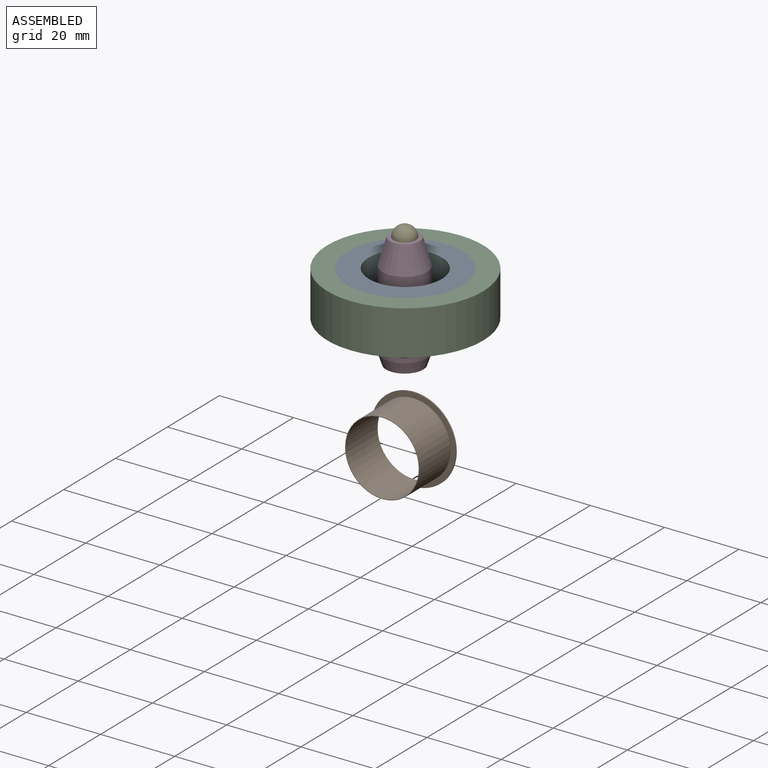
[diagram: assembled view]
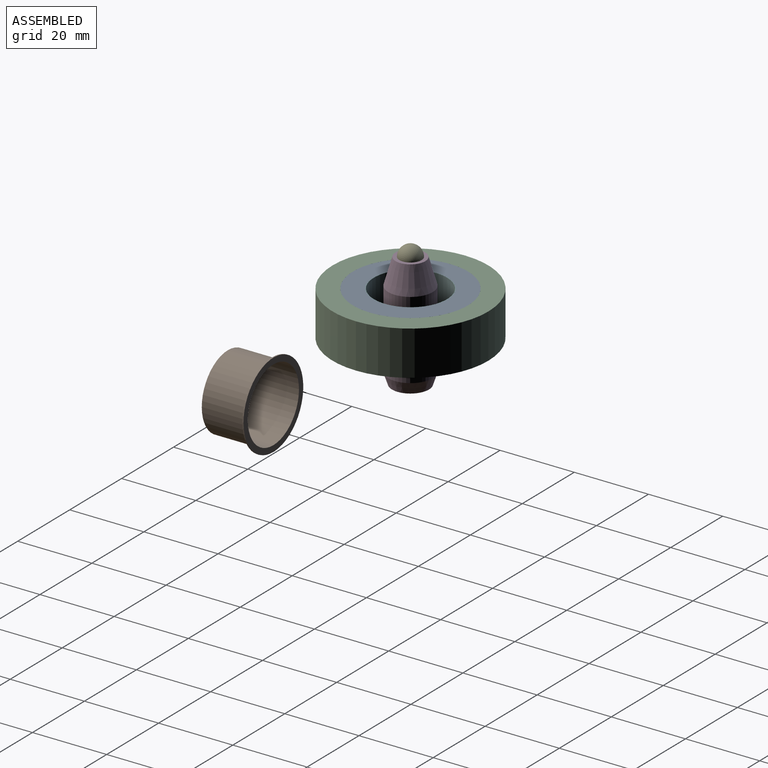
[diagram: assembled view, second angle]
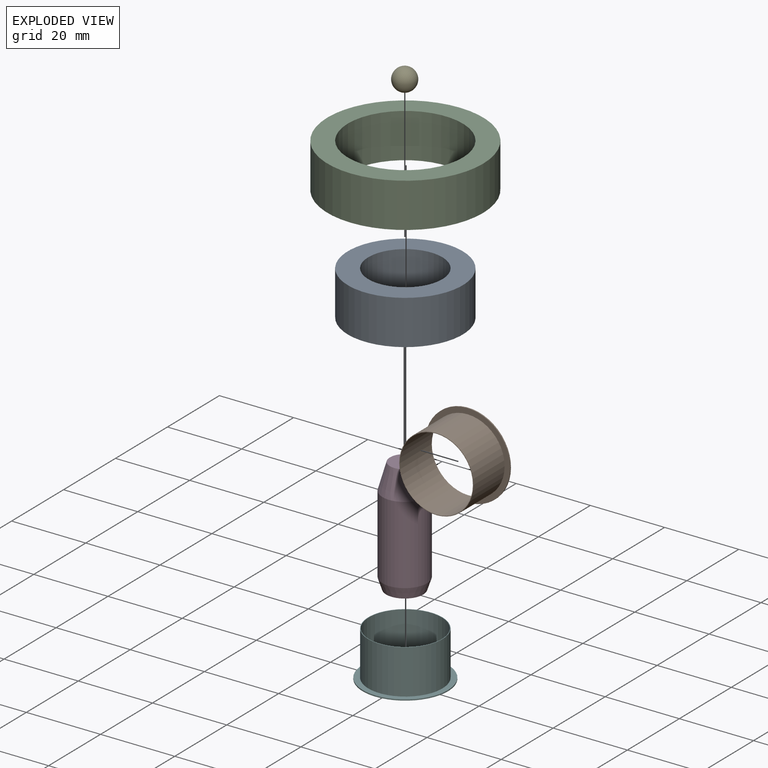
[diagram: exploded view]
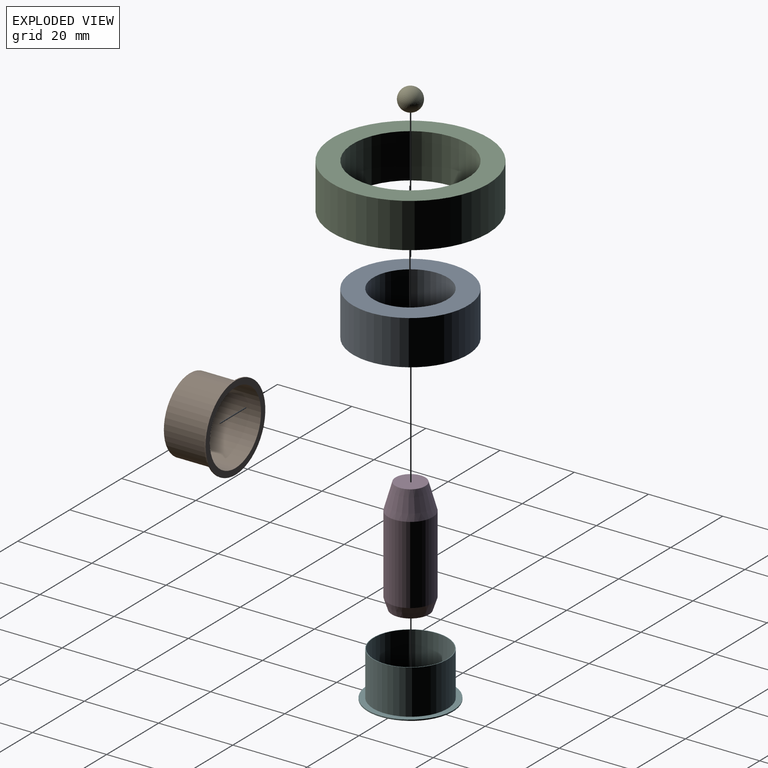
[diagram: exploded view, second angle]
ASSEMBLY  parts=5 mates=3
PART A: 4 faces, bbox 31x12x31 mm
  f0: cylinder r=10mm len=20mm, axis (0,1,0), area 754mm2, adj f2,f3
  f1: cylinder r=15.5mm len=31mm, axis (0,1,0), area 1168.7mm2, adj f2,f3
  f2: plane 31x31mm, normal (0,-1,0), area 440.6mm2, adj f0,f1
  f3: plane 31x31mm, normal (0,1,0), area 440.6mm2, adj f0,f1
PART B: 4 faces, bbox 42x12x42 mm
  f0: cylinder r=15.5mm len=31mm, axis (0,1,0), area 1168.7mm2, adj f2,f3
  f1: cylinder r=21mm len=42mm, axis (0,1,0), area 1583.4mm2, adj f2,f3
  f2: plane 42x42mm, normal (0,-1,0), area 630.7mm2, adj f0,f1
  f3: plane 42x42mm, normal (0,1,0), area 630.7mm2, adj f0,f1
PART C: 5 faces, bbox 12x12x31 mm
  f0: plane 10x10mm, normal (0,0,-1), area 78.5mm2, adj f1
  f1: cone r=6mm half-angle=18.4deg, axis (0,0,1), area 109.3mm2, adj f0,f2
  f2: cylinder r=6mm len=21mm, axis (0,0,-1), area 791.7mm2, adj f1,f3
  f3: cone r=4mm half-angle=15.9deg, axis (0,0,-1), area 228.7mm2, adj f2,f4
  f4: plane 8x8mm, normal (0,0,1), area 50.3mm2, adj f3
PART D: 1 faces, bbox 6x6x6 mm
  f0: sphere r=3mm, area 113.1mm2
PART E: 6 faces, bbox 23x12.3x23 mm
  f0: cylinder r=9.85mm len=19.7mm, axis (0,1,0), area 761.2mm2, adj f2,f4
  f1: cylinder r=10mm len=20mm, axis (0,1,0), area 754mm2, adj f2,f3
  f2: plane 20x20mm, normal (0,-1,0), area 9.4mm2, adj f0,f1
  f3: plane 23x23mm, normal (0,-1,0), area 101.3mm2, adj f1,f5
  f4: plane 23x23mm, normal (0,1,0), area 110.7mm2, adj f0,f5
  f5: cylinder r=11.5mm len=23mm, axis (0,-1,0), area 21.7mm2, adj f3,f4
PLACE A rot(axis=(0.6,0.56,0.56),117.8deg) t=(0.15,0,19.97)mm
PLACE B rot(axis=(1,0,0),90deg) t=(0.15,0,19.97)mm fixed
PLACE C t=(0.04,-0.09,10.57)mm fixed
PLACE D t=(0.04,-0.09,10.57)mm
PLACE E rot(axis=(-0.6,-0.56,0.56),117.8deg) t=(0.15,0,7.97)mm
MATE fastened D.f0 <-> C.f1  axis (0,0,1) through (0.04,-0.09,27.61)mm
MATE revolute A.f0 <-> B.f0  axis (0,0,1) through (0.15,0,7.97)mm
MATE fastened E.f0 <-> A.f0  axis (0,0,-1) through (0.15,0,13.97)mm
